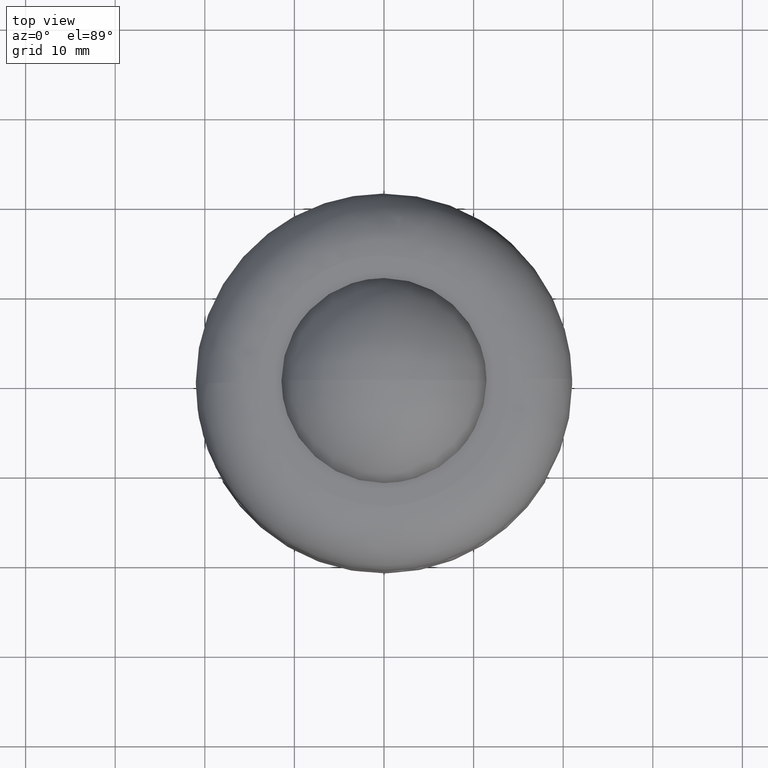
[diagram: clean part render]
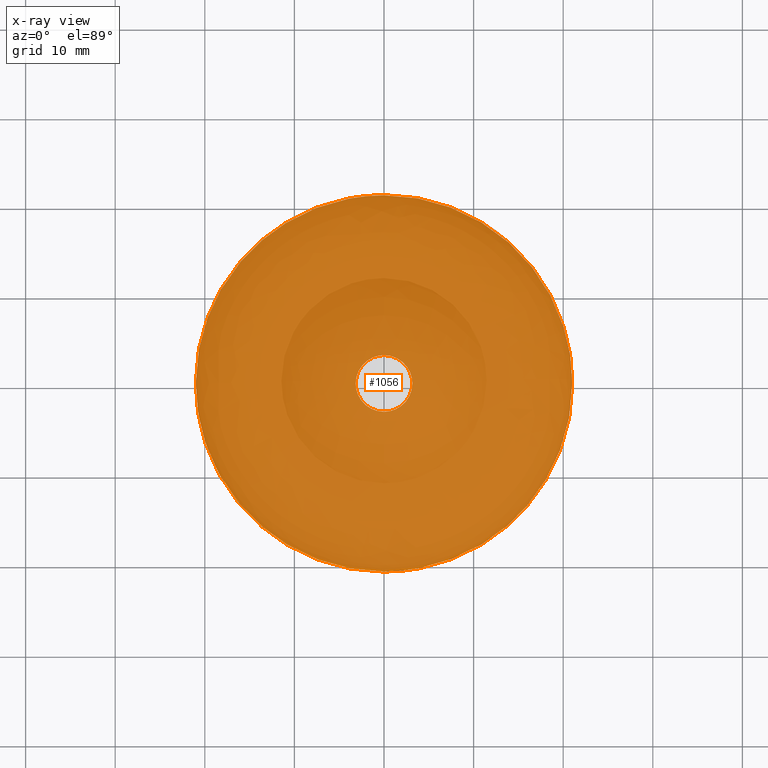
[diagram: x-ray — body ghosted, one internal face saturated and labeled with its STEP entity id]
A machine part, top view, then the same camera in x-ray: the body is ghosted and one INTERNAL B-rep face — a face not visible from any outside direction — is saturated and labeled: STEP entity #1056.
In plain terms, the highlighted face is a freeform B-spline surface patch.
Its self-contained STEP definition (entity closure, byte-faithful):
#804=CARTESIAN_POINT('',(-10.971620106373731,17.905964152801619,-2.498002E-016));
#805=VERTEX_POINT('',#804);
#806=CARTESIAN_POINT('',(-2.486900E-014,21.0,0.0));
#807=VERTEX_POINT('',#806);
#808=CARTESIAN_POINT('',(-10.971620106373731,17.905964152801619,-2.498002E-016));
#809=CARTESIAN_POINT('',(-10.228242929205191,18.361479496069720,-2.328751E-016));
#810=CARTESIAN_POINT('',(-8.551592074780505,19.250308480628071,-1.947013E-016));
#811=CARTESIAN_POINT('',(-5.920300139718319,20.217320473010670,-1.347925E-016));
#812=CARTESIAN_POINT('',(-3.006322541744440,20.852806749503561,-6.844750E-017));
#813=CARTESIAN_POINT('',(-1.052224175627032,21.000064939820039,-2.395688E-017));
#814=CARTESIAN_POINT('',(-2.486900E-014,21.0,0.0));
#815=B_SPLINE_CURVE_WITH_KNOTS('',3,(#808,#809,#810,#811,#812,#813,#814),.UNSPECIFIED.,.F.,.U.,(4,1,1,1,4),(3.120773E-009,2.615519948360280,5.682000007244393,8.387702584440598,11.544365275281770),.UNSPECIFIED.);
#816=EDGE_CURVE('',#805,#807,#815,.T.);
#818=CARTESIAN_POINT('',(20.999999999999950,0.0,0.0));
#819=VERTEX_POINT('',#818);
#820=CARTESIAN_POINT('',(-2.486900E-014,21.0,0.0));
#821=CARTESIAN_POINT('',(1.202642667941177,21.000084755399438,0.0));
#822=CARTESIAN_POINT('',(3.564946869563099,20.796541729510000,0.0));
#823=CARTESIAN_POINT('',(6.568007611870731,20.014869099981190,0.0));
#824=CARTESIAN_POINT('',(9.233680729669025,18.920221889785889,0.0));
#825=CARTESIAN_POINT('',(11.560531943914039,17.611530009379099,0.0));
#826=CARTESIAN_POINT('',(13.890230384052719,15.838975186768041,0.0));
#827=CARTESIAN_POINT('',(15.772127824701499,13.945473599356999,0.0));
#828=CARTESIAN_POINT('',(17.327163825108929,11.940183119056471,0.0));
#829=CARTESIAN_POINT('',(18.607276479035932,9.848396773153834,0.0));
#830=CARTESIAN_POINT('',(19.568642176138820,7.732343539539185,0.0));
#831=CARTESIAN_POINT('',(20.323830905897950,5.446344732590996,0.0));
#832=CARTESIAN_POINT('',(20.857404923694350,2.963635013888600,0.0));
#833=CARTESIAN_POINT('',(21.000046686765629,1.030835014005554,0.0));
#834=CARTESIAN_POINT('',(20.999999999999950,0.0,0.0));
#835=B_SPLINE_CURVE_WITH_KNOTS('',3,(#820,#821,#822,#823,#824,#825,#826,#827,#828,#829,#830,#831,#832,#833,#834),.UNSPECIFIED.,.F.,.U.,(4,1,1,1,1,1,1,1,1,1,1,1,4),(9.833357E-009,3.607920982806665,7.086999600226758,9.277533691626037,12.241187001472920,15.075994680785410,18.039641631834069,20.230158708332489,22.678402563237650,25.384355526376162,27.188322573082370,29.894271820692040,32.986774609286108),.UNSPECIFIED.);
#836=EDGE_CURVE('',#807,#819,#835,.T.);
#838=CARTESIAN_POINT('',(10.971620106373640,-17.905964152801619,-2.498002E-016));
#839=VERTEX_POINT('',#838);
#840=CARTESIAN_POINT('',(20.999999999999950,0.0,0.0));
#841=CARTESIAN_POINT('',(21.000004028522131,-0.670073125568860,-9.347968E-018));
#842=CARTESIAN_POINT('',(20.921122756488550,-2.317340986726850,-3.232846E-017));
#843=CARTESIAN_POINT('',(20.510721109560858,-4.774213461715115,-6.660347E-017));
#844=CARTESIAN_POINT('',(19.794709213728151,-7.129112615038669,-9.945589E-017));
#845=CARTESIAN_POINT('',(18.856826829039381,-9.342212795243077,-1.303301E-016));
#846=CARTESIAN_POINT('',(17.759146017902761,-11.293004020821421,-1.575450E-016));
#847=CARTESIAN_POINT('',(16.153781898204340,-13.512565683758551,-1.885093E-016));
#848=CARTESIAN_POINT('',(14.021026417870830,-15.775329570260240,-2.200764E-016));
#849=CARTESIAN_POINT('',(12.066782752354190,-17.235075924035019,-2.404408E-016));
#850=CARTESIAN_POINT('',(10.971620106373640,-17.905964152801619,-2.498002E-016));
#851=B_SPLINE_CURVE_WITH_KNOTS('',3,(#840,#841,#842,#843,#844,#845,#846,#847,#848,#849,#850),.UNSPECIFIED.,.F.,.U.,(4,1,1,1,1,1,1,1,4),(9.984948E-009,2.010222016590983,4.941797526002290,7.454578120345961,9.381053075232519,12.145097081076379,14.155319829793990,17.589453027543112,21.442380672718869),.UNSPECIFIED.);
#852=EDGE_CURVE('',#819,#839,#851,.T.);
#890=CARTESIAN_POINT('',(-21.000000000000050,0.0,0.0));
#891=VERTEX_POINT('',#890);
#892=CARTESIAN_POINT('',(-21.000000000000050,0.0,0.0));
#893=CARTESIAN_POINT('',(-21.000085781807471,1.144715252266004,-1.596954E-017));
#894=CARTESIAN_POINT('',(-20.848937924920509,2.987387706192070,-4.167606E-017));
#895=CARTESIAN_POINT('',(-20.251024310670019,5.746760836155354,-8.017116E-017));
#896=CARTESIAN_POINT('',(-19.445854090919930,8.074346858550914,-1.126425E-016));
#897=CARTESIAN_POINT('',(-18.182982940252721,10.631806488511970,-1.483208E-016));
#898=CARTESIAN_POINT('',(-16.775938083541540,12.722854202137979,-1.774923E-016));
#899=CARTESIAN_POINT('',(-14.959882075925000,14.810476698143130,-2.066161E-016));
#900=CARTESIAN_POINT('',(-13.132615509476800,16.462913033182119,-2.296687E-016));
#901=CARTESIAN_POINT('',(-11.638193947569100,17.497539588651090,-2.441024E-016));
#902=CARTESIAN_POINT('',(-10.971620106373731,17.905964152801619,-2.498002E-016));
#903=B_SPLINE_CURVE_WITH_KNOTS('',3,(#892,#893,#894,#895,#896,#897,#898,#899,#900,#901,#902),.UNSPECIFIED.,.F.,.U.,(4,1,1,1,1,1,1,1,4),(9.983786E-009,3.434130097232988,5.528114298115627,8.459691236033262,10.804935078160300,14.071556420049800,15.998026095892520,19.097129071313041,21.442380672718869),.UNSPECIFIED.);
#904=EDGE_CURVE('',#891,#805,#903,.T.);
#913=CARTESIAN_POINT('',(-2.486900E-014,-21.0,0.0));
#914=VERTEX_POINT('',#913);
#915=CARTESIAN_POINT('',(10.971620106373640,-17.905964152801619,-2.498002E-016));
#916=CARTESIAN_POINT('',(9.792541469075756,-18.628653625863951,-2.229551E-016));
#917=CARTESIAN_POINT('',(7.725955990318367,-19.628996606619161,-1.759034E-016));
#918=CARTESIAN_POINT('',(4.866101104436367,-20.475357726673820,-1.107907E-016));
#919=CARTESIAN_POINT('',(2.435133212671763,-20.902500836481561,-5.544274E-017));
#920=CARTESIAN_POINT('',(0.871840533072979,-21.000028553002100,-1.984993E-017));
#921=CARTESIAN_POINT('',(-2.486900E-014,-21.0,0.0));
#922=B_SPLINE_CURVE_WITH_KNOTS('',3,(#915,#916,#917,#918,#919,#920,#921),.UNSPECIFIED.,.F.,.U.,(4,1,1,1,4),(3.118737E-009,4.148759107393631,6.854461552533076,8.928845330041609,11.544365275281720),.UNSPECIFIED.);
#923=EDGE_CURVE('',#839,#914,#922,.T.);
#925=CARTESIAN_POINT('',(-2.486900E-014,-21.0,0.0));
#926=CARTESIAN_POINT('',(-1.202646164567138,-21.000096817140101,0.0));
#927=CARTESIAN_POINT('',(-3.006567829361094,-20.844602631810861,0.0));
#928=CARTESIAN_POINT('',(-5.442767262886494,-20.313166981388939,0.0));
#929=CARTESIAN_POINT('',(-7.533534948437003,-19.650842742061489,0.0));
#930=CARTESIAN_POINT('',(-10.087726832858120,-18.509346585497799,0.0));
#931=CARTESIAN_POINT('',(-12.518450380956100,-16.949131061429139,0.0));
#932=CARTESIAN_POINT('',(-14.700788652202270,-15.066532348140329,0.0));
#933=CARTESIAN_POINT('',(-16.208887745163359,-13.412824950094580,0.0));
#934=CARTESIAN_POINT('',(-17.509399308256341,-11.647977175034731,0.0));
#935=CARTESIAN_POINT('',(-18.465051779764920,-10.064590146684839,0.0));
#936=CARTESIAN_POINT('',(-19.514306172796850,-7.898091844229191,0.0));
#937=CARTESIAN_POINT('',(-20.355341428619820,-5.453420895423347,0.0));
#938=CARTESIAN_POINT('',(-20.891805640615502,-2.620026225988265,0.0));
#939=CARTESIAN_POINT('',(-21.000021235095609,-0.859023929436675,0.0));
#940=CARTESIAN_POINT('',(-21.000000000000050,0.0,0.0));
#941=B_SPLINE_CURVE_WITH_KNOTS('',3,(#925,#926,#927,#928,#929,#930,#931,#932,#933,#934,#935,#936,#937,#938,#939,#940),.UNSPECIFIED.,.F.,.U.,(4,1,1,1,1,1,1,1,1,1,1,1,1,4),(9.834352E-009,3.607920982806999,5.411886077335836,7.473566190221156,10.179517777731469,13.787451577653650,16.106839547461831,18.812753257782379,20.487874004348480,22.678402563238279,24.353517372939191,27.703745214002591,30.409699078743209,32.986774609286151),.UNSPECIFIED.);
#942=EDGE_CURVE('',#914,#891,#941,.T.);
#971=CARTESIAN_POINT('',(-0.000000552431255,-3.162277660167517,1.776357E-015));
#972=VERTEX_POINT('',#971);
#973=CARTESIAN_POINT('',(-3.162277660167566,0.0,1.776357E-015));
#974=VERTEX_POINT('',#973);
#975=CARTESIAN_POINT('',(-0.000000552431255,-3.162277660167517,1.776357E-015));
#976=CARTESIAN_POINT('',(-0.168160851804842,-3.162284224101284,1.823589E-015));
#977=CARTESIAN_POINT('',(-0.543298526529992,-3.132304880973098,1.920533E-015));
#978=CARTESIAN_POINT('',(-1.046042258592223,-2.999787246066759,2.024517E-015));
#979=CARTESIAN_POINT('',(-1.613469884701451,-2.744145739671192,2.112087E-015));
#980=CARTESIAN_POINT('',(-2.080613730897299,-2.410819494474717,2.149672E-015));
#981=CARTESIAN_POINT('',(-2.548506275612828,-1.907133724509128,2.139619E-015));
#982=CARTESIAN_POINT('',(-2.890385203468580,-1.352355078262322,2.079823E-015));
#983=CARTESIAN_POINT('',(-3.114872491999846,-0.672647314720699,1.951966E-015));
#984=CARTESIAN_POINT('',(-3.162308296216786,-0.219906420187021,1.838130E-015));
#985=CARTESIAN_POINT('',(-3.162277660167566,0.0,1.776357E-015));
#986=B_SPLINE_CURVE_WITH_KNOTS('',3,(#975,#976,#977,#978,#979,#980,#981,#982,#983,#984,#985),.UNSPECIFIED.,.F.,.U.,(4,1,1,1,1,1,1,1,4),(0.000000060069448,0.504486932704038,1.125407721275156,1.552289480024199,2.367252115897601,2.832910930210682,3.609069886729682,4.307604735456210,4.967324989200580),.UNSPECIFIED.);
#987=EDGE_CURVE('',#972,#974,#986,.T.);
#989=CARTESIAN_POINT('',(3.162277660167566,0.0,0.0));
#990=VERTEX_POINT('',#989);
#991=CARTESIAN_POINT('',(3.162277660167566,0.0,0.0));
#992=CARTESIAN_POINT('',(3.162298519246628,-0.194032241835795,5.449132E-017));
#993=CARTESIAN_POINT('',(3.126445651618740,-0.582093781594693,1.735547E-016));
#994=CARTESIAN_POINT('',(2.960035305290639,-1.169538240344666,3.852874E-016));
#995=CARTESIAN_POINT('',(2.699579325222868,-1.679116507628182,6.015643E-016));
#996=CARTESIAN_POINT('',(2.361843649180212,-2.122970992700253,8.210869E-016));
#997=CARTESIAN_POINT('',(1.929331820476023,-2.534841593486612,1.058246E-015));
#998=CARTESIAN_POINT('',(1.385640012382663,-2.869853464739001,1.305044E-015));
#999=CARTESIAN_POINT('',(0.711431681542226,-3.106393239071252,1.560843E-015));
#1000=CARTESIAN_POINT('',(0.258715815273249,-3.162339008799338,1.703709E-015));
#1001=CARTESIAN_POINT('',(-0.000000552431255,-3.162277660167517,1.776357E-015));
#1002=B_SPLINE_CURVE_WITH_KNOTS('',3,(#991,#992,#993,#994,#995,#996,#997,#998,#999,#1000,#1001),.UNSPECIFIED.,.F.,.U.,(4,1,1,1,1,1,1,1,4),(0.000000059880010,0.582096057597954,1.164216856138188,1.823943800348293,2.289645561349542,2.832911285575712,3.609070339316483,4.191185746911568,4.967325611923247),.UNSPECIFIED.);
#1003=EDGE_CURVE('',#990,#972,#1002,.T.);
#1005=CARTESIAN_POINT('',(0.000000552431230,3.162277660167518,1.776357E-015));
#1006=VERTEX_POINT('',#1005);
#1007=CARTESIAN_POINT('',(0.000000552431230,3.162277660167518,1.776357E-015));
#1008=CARTESIAN_POINT('',(0.323401625854377,3.162427887917949,1.685566E-015));
#1009=CARTESIAN_POINT('',(0.905432337932536,3.072198566579429,1.496751E-015));
#1010=CARTESIAN_POINT('',(1.628232670480526,2.741084277744965,1.200741E-015));
#1011=CARTESIAN_POINT('',(2.155779985458414,2.339657116034205,9.398235E-016));
#1012=CARTESIAN_POINT('',(2.571693012869992,1.875087025191863,6.925251E-016));
#1013=CARTESIAN_POINT('',(2.869490770488173,1.371241619842937,4.673702E-016));
#1014=CARTESIAN_POINT('',(3.100714176260380,0.737280452194535,2.243687E-016));
#1015=CARTESIAN_POINT('',(3.162386249458739,0.284596140320422,7.990309E-017));
#1016=CARTESIAN_POINT('',(3.162277660167566,0.0,0.0));
#1017=B_SPLINE_CURVE_WITH_KNOTS('',3,(#1007,#1008,#1009,#1010,#1011,#1012,#1013,#1014,#1015,#1016),.UNSPECIFIED.,.F.,.U.,(4,1,1,1,1,1,1,4),(0.000000060071329,0.970175505364654,1.746335112603817,2.367252115898440,2.949334399711277,3.609069886730103,4.113573624627557,4.967324989200575),.UNSPECIFIED.);
#1018=EDGE_CURVE('',#1006,#990,#1017,.T.);
#1020=CARTESIAN_POINT('',(-3.162277660167566,0.0,1.776357E-015));
#1021=CARTESIAN_POINT('',(-3.162282551439105,0.168160469627253,1.823589E-015));
#1022=CARTESIAN_POINT('',(-3.132306721928929,0.543297938829673,1.920533E-015));
#1023=CARTESIAN_POINT('',(-2.999794268165229,1.046047717929686,2.024521E-015));
#1024=CARTESIAN_POINT('',(-2.792034911862275,1.507047096069585,2.095647E-015));
#1025=CARTESIAN_POINT('',(-2.528347656727014,1.923467398708388,2.138545E-015));
#1026=CARTESIAN_POINT('',(-2.147116638228931,2.349335210038855,2.151082E-015));
#1027=CARTESIAN_POINT('',(-1.585614367975786,2.771260519871526,2.111880E-015));
#1028=CARTESIAN_POINT('',(-0.853718442080970,3.084929532646193,1.994414E-015));
#1029=CARTESIAN_POINT('',(-0.284589931004863,3.162373867182542,1.856316E-015));
#1030=CARTESIAN_POINT('',(0.000000552431230,3.162277660167518,1.776357E-015));
#1031=B_SPLINE_CURVE_WITH_KNOTS('',3,(#1020,#1021,#1022,#1023,#1024,#1025,#1026,#1027,#1028,#1029,#1030),.UNSPECIFIED.,.F.,.U.,(4,1,1,1,1,1,1,1,4),(0.000000059878673,0.504486995851075,1.125407862203231,1.552289674379426,2.017990690066087,2.600073547258101,3.259802699471987,4.113574140398064,4.967325611923243),.UNSPECIFIED.);
#1032=EDGE_CURVE('',#974,#1006,#1031,.T.);
#1037=CARTESIAN_POINT('',(-23.097899918595900,-23.097899918595850,0.0));
#1038=CARTESIAN_POINT('',(23.097901045123589,-23.097899918595850,0.0));
#1039=CARTESIAN_POINT('',(-23.097899918595900,23.097901045123638,0.0));
#1040=CARTESIAN_POINT('',(23.097901045123589,23.097901045123638,0.0));
#1041=B_SPLINE_SURFACE_WITH_KNOTS('',1,1,((#1037,#1039),(#1038,#1040)),.UNSPECIFIED.,.F.,.F.,.U.,(2,2),(2,2),(0.0,46.195800963719492),(0.0,46.195800963719492),.UNSPECIFIED.);
#1042=ORIENTED_EDGE('',*,*,#836,.F.);
#1043=ORIENTED_EDGE('',*,*,#816,.F.);
#1044=ORIENTED_EDGE('',*,*,#904,.F.);
#1045=ORIENTED_EDGE('',*,*,#942,.F.);
#1046=ORIENTED_EDGE('',*,*,#923,.F.);
#1047=ORIENTED_EDGE('',*,*,#852,.F.);
#1048=EDGE_LOOP('',(#1042,#1043,#1044,#1045,#1046,#1047));
#1049=FACE_OUTER_BOUND('',#1048,.T.);
#1050=ORIENTED_EDGE('',*,*,#1032,.T.);
#1051=ORIENTED_EDGE('',*,*,#1018,.T.);
#1052=ORIENTED_EDGE('',*,*,#1003,.T.);
#1053=ORIENTED_EDGE('',*,*,#987,.T.);
#1054=EDGE_LOOP('',(#1050,#1051,#1052,#1053));
#1055=FACE_BOUND('',#1054,.T.);
#1056=ADVANCED_FACE('',(#1049,#1055),#1041,.T.);